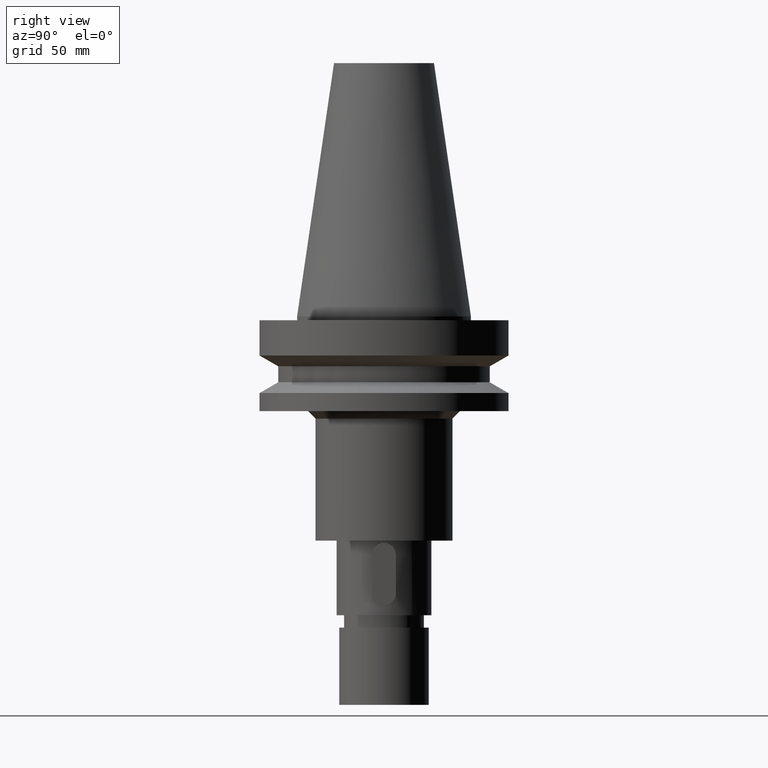
[diagram: clean part render]
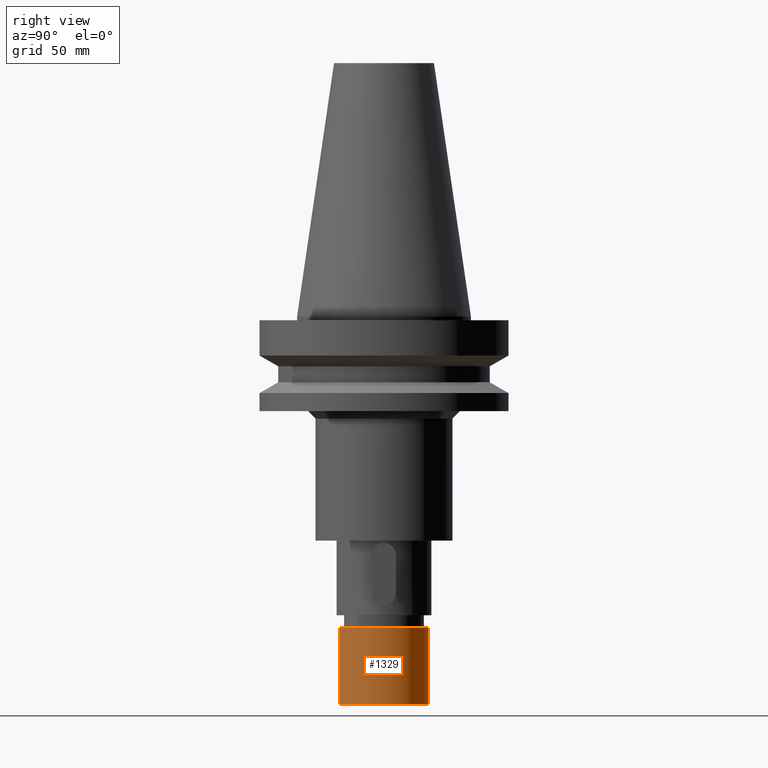
[diagram: same view with one face highlighted and labeled with its STEP entity id]
A machine part, right view. The second image highlights one B-rep face of the part: STEP entity #1329.
In plain terms, the highlighted cylindrical surface (partial cylindrical patch) has radius 18 mm, axis along (0, 0, -1).
Its self-contained STEP definition (entity closure, byte-faithful):
#518=CARTESIAN_POINT('',(0.E0,2.629194213089E-14,-1.25E2));
#519=DIRECTION('',(0.E0,0.E0,-1.E0));
#520=DIRECTION('',(0.E0,1.E0,0.E0));
#521=AXIS2_PLACEMENT_3D('',#518,#519,#520);
#550=DIRECTION('',(0.E0,0.E0,-1.E0));
#551=VECTOR('',#550,3.1E1);
#552=CARTESIAN_POINT('',(0.E0,1.8E1,-1.25E2));
#553=LINE('',#552,#551);
#557=DIRECTION('',(0.E0,0.E0,-1.E0));
#558=VECTOR('',#557,3.1E1);
#559=CARTESIAN_POINT('',(0.E0,-1.8E1,-1.25E2));
#560=LINE('',#559,#558);
#572=CARTESIAN_POINT('',(0.E0,2.629194213089E-14,-1.56E2));
#573=DIRECTION('',(0.E0,0.E0,1.E0));
#574=DIRECTION('',(0.E0,-1.E0,0.E0));
#575=AXIS2_PLACEMENT_3D('',#572,#573,#574);
#793=CARTESIAN_POINT('',(0.E0,1.8E1,-1.25E2));
#794=CARTESIAN_POINT('',(0.E0,-1.8E1,-1.25E2));
#795=VERTEX_POINT('',#793);
#796=VERTEX_POINT('',#794);
#797=CARTESIAN_POINT('',(0.E0,1.8E1,-1.56E2));
#798=VERTEX_POINT('',#797);
#799=CARTESIAN_POINT('',(0.E0,-1.8E1,-1.56E2));
#800=VERTEX_POINT('',#799);
#1315=CARTESIAN_POINT('',(0.E0,2.629194213089E-14,1.1469E2));
#1316=DIRECTION('',(0.E0,0.E0,-1.E0));
#1317=DIRECTION('',(0.E0,-1.E0,0.E0));
#1318=AXIS2_PLACEMENT_3D('',#1315,#1316,#1317);
#1319=CYLINDRICAL_SURFACE('',#1318,1.8E1);
#1321=ORIENTED_EDGE('',*,*,#1320,.T.);
#1323=ORIENTED_EDGE('',*,*,#1322,.F.);
#1325=ORIENTED_EDGE('',*,*,#1324,.F.);
#1326=ORIENTED_EDGE('',*,*,#1304,.F.);
#1327=EDGE_LOOP('',(#1321,#1323,#1325,#1326));
#1328=FACE_OUTER_BOUND('',#1327,.F.);
#522=CIRCLE('',#521,1.8E1);
#576=CIRCLE('',#575,1.8E1);
#1304=EDGE_CURVE('',#795,#796,#522,.T.);
#1320=EDGE_CURVE('',#795,#798,#553,.T.);
#1322=EDGE_CURVE('',#800,#798,#576,.T.);
#1324=EDGE_CURVE('',#796,#800,#560,.T.);
#1329=ADVANCED_FACE('',(#1328),#1319,.T.);